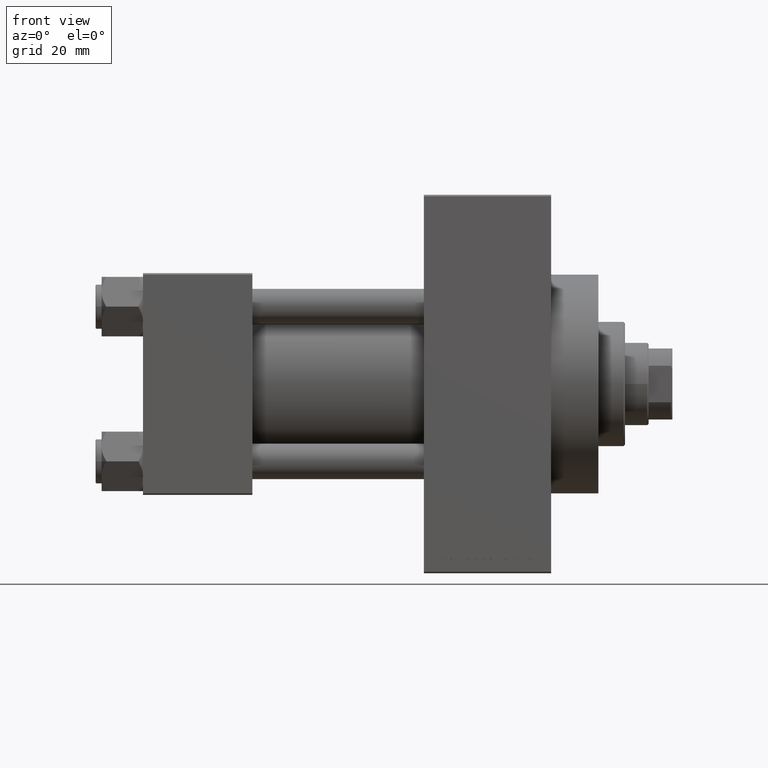
[diagram: clean part render]
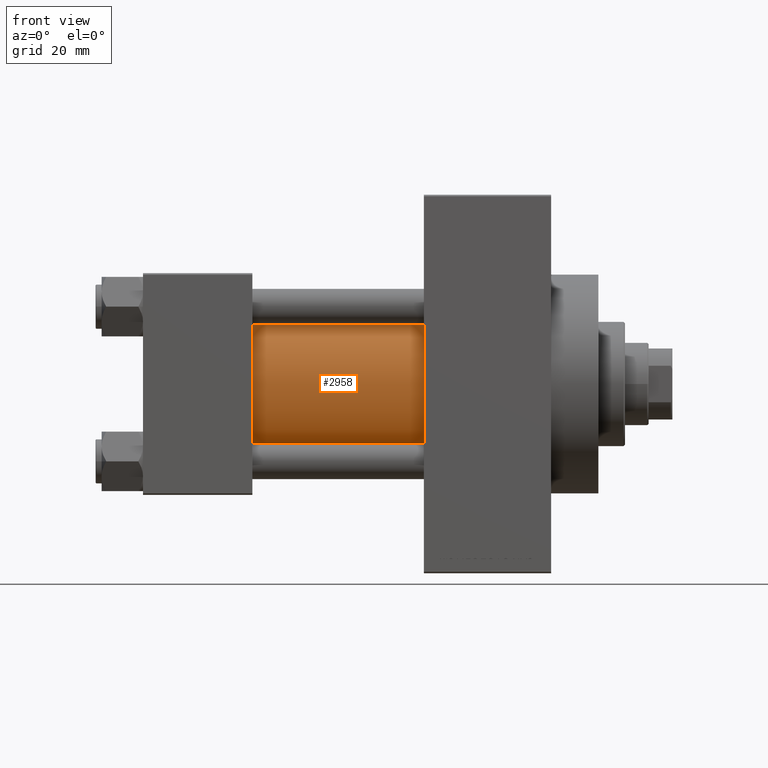
[diagram: same view with one face highlighted and labeled with its STEP entity id]
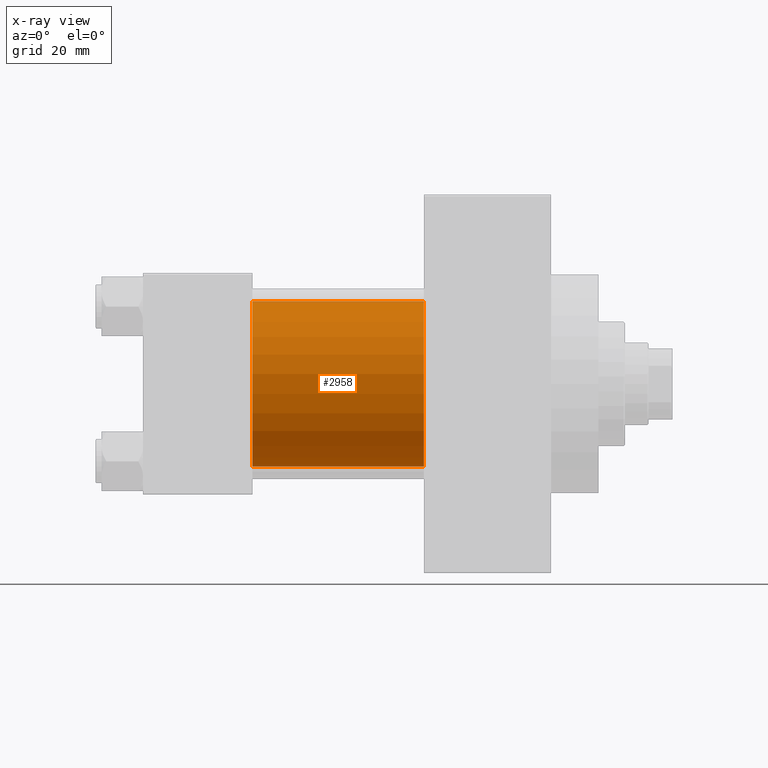
[diagram: x-ray of the same camera — body ghosted, the highlighted face saturated]
A machine part, front view. The second image highlights one B-rep face of the part: STEP entity #2958.
The next image is the same camera in x-ray: the body ghosted, the highlighted face saturated — about 2% of this face is hidden behind the body in this view.
In plain terms, the highlighted cylindrical surface (partial cylindrical patch) has radius 28 mm, axis along (-1, -0, -0).
Its self-contained STEP definition (entity closure, byte-faithful):
#340 = AXIS2_PLACEMENT_3D ( 'NONE', #26910, #38362, #11760 ) ;
#2958 = ADVANCED_FACE ( 'NONE', ( #33899 ), #33654, .T. ) ;
#5139 = EDGE_CURVE ( 'NONE', #12291, #33206, #16770, .T. ) ;
#5521 = CARTESIAN_POINT ( 'NONE',  ( 95.00000000000000000, 8.269258236473776482E-16, -28.00000000000000000 ) ) ;
#5628 = VECTOR ( 'NONE', #45941, 1000.000000000000000 ) ;
#6128 = VERTEX_POINT ( 'NONE', #9833 ) ;
#7381 = CARTESIAN_POINT ( 'NONE',  ( 37.00000000000000000, -2.602085213965210642E-15, 28.00000000000000000 ) ) ;
#7751 = VERTEX_POINT ( 'NONE', #46714 ) ;
#9833 = CARTESIAN_POINT ( 'NONE',  ( 95.00000000000000000, -2.602085213965210642E-15, 28.00000000000000000 ) ) ;
#10532 = DIRECTION ( 'NONE',  ( -1.000000000000000000, -0.000000000000000000, -0.000000000000000000 ) ) ;
#11760 = DIRECTION ( 'NONE',  ( 0.000000000000000000, 0.000000000000000000, -1.000000000000000000 ) ) ;
#12190 = ORIENTED_EDGE ( 'NONE', *, *, #5139, .T. ) ;
#12291 = VERTEX_POINT ( 'NONE', #7381 ) ;
#14592 = DIRECTION ( 'NONE',  ( 0.000000000000000000, 0.000000000000000000, 1.000000000000000000 ) ) ;
#14834 = CARTESIAN_POINT ( 'NONE',  ( 37.00000000000000000, -2.602085213965210642E-15, 0.000000000000000000 ) ) ;
#15607 = CARTESIAN_POINT ( 'NONE',  ( 37.00000000000000000, 8.269258236473776482E-16, -28.00000000000000000 ) ) ;
#16334 = VECTOR ( 'NONE', #43054, 1000.000000000000000 ) ;
#16770 = CIRCLE ( 'NONE', #44561, 28.00000000000000000 ) ;
#18955 = CARTESIAN_POINT ( 'NONE',  ( 95.00000000000000000, -2.602085213965210642E-15, 0.000000000000000000 ) ) ;
#19970 = EDGE_LOOP ( 'NONE', ( #25081, #39610, #42547, #12190 ) ) ;
#21841 = CARTESIAN_POINT ( 'NONE',  ( 95.00000000000000000, -2.602085213965210642E-15, 28.00000000000000000 ) ) ;
#24629 = LINE ( 'NONE', #5521, #16334 ) ;
#24953 = CIRCLE ( 'NONE', #340, 28.00000000000000000 ) ;
#25081 = ORIENTED_EDGE ( 'NONE', *, *, #30394, .F. ) ;
#26417 = DIRECTION ( 'NONE',  ( 0.000000000000000000, 0.000000000000000000, 1.000000000000000000 ) ) ;
#26910 = CARTESIAN_POINT ( 'NONE',  ( 95.00000000000000000, -2.602085213965210642E-15, 0.000000000000000000 ) ) ;
#27385 = EDGE_CURVE ( 'NONE', #6128, #7751, #24953, .T. ) ;
#30394 = EDGE_CURVE ( 'NONE', #7751, #33206, #24629, .T. ) ;
#33206 = VERTEX_POINT ( 'NONE', #15607 ) ;
#33654 = CYLINDRICAL_SURFACE ( 'NONE', #44491, 28.00000000000000000 ) ;
#33899 = FACE_OUTER_BOUND ( 'NONE', #19970, .T. ) ;
#33988 = DIRECTION ( 'NONE',  ( 1.000000000000000000, -0.000000000000000000, 0.000000000000000000 ) ) ;
#38362 = DIRECTION ( 'NONE',  ( 1.000000000000000000, 0.000000000000000000, 0.000000000000000000 ) ) ;
#39610 = ORIENTED_EDGE ( 'NONE', *, *, #27385, .F. ) ;
#40749 = LINE ( 'NONE', #21841, #5628 ) ;
#42547 = ORIENTED_EDGE ( 'NONE', *, *, #48484, .T. ) ;
#43054 = DIRECTION ( 'NONE',  ( -1.000000000000000000, -0.000000000000000000, -0.000000000000000000 ) ) ;
#44491 = AXIS2_PLACEMENT_3D ( 'NONE', #18955, #10532, #26417 ) ;
#44561 = AXIS2_PLACEMENT_3D ( 'NONE', #14834, #33988, #14592 ) ;
#45941 = DIRECTION ( 'NONE',  ( -1.000000000000000000, -0.000000000000000000, -0.000000000000000000 ) ) ;
#46714 = CARTESIAN_POINT ( 'NONE',  ( 95.00000000000000000, 8.269258236473776482E-16, -28.00000000000000000 ) ) ;
#48484 = EDGE_CURVE ( 'NONE', #6128, #12291, #40749, .T. ) ;